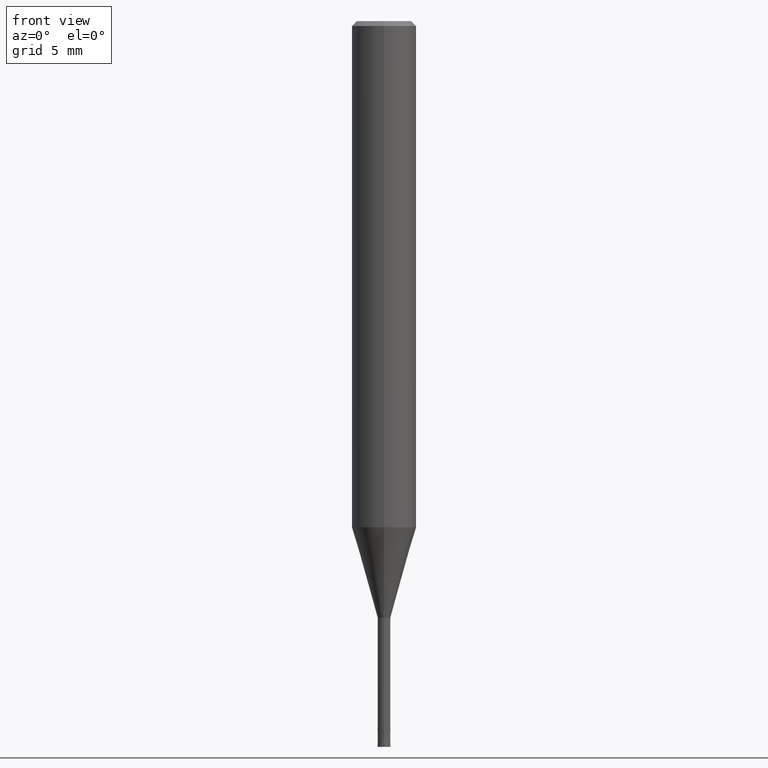
[diagram: clean part render]
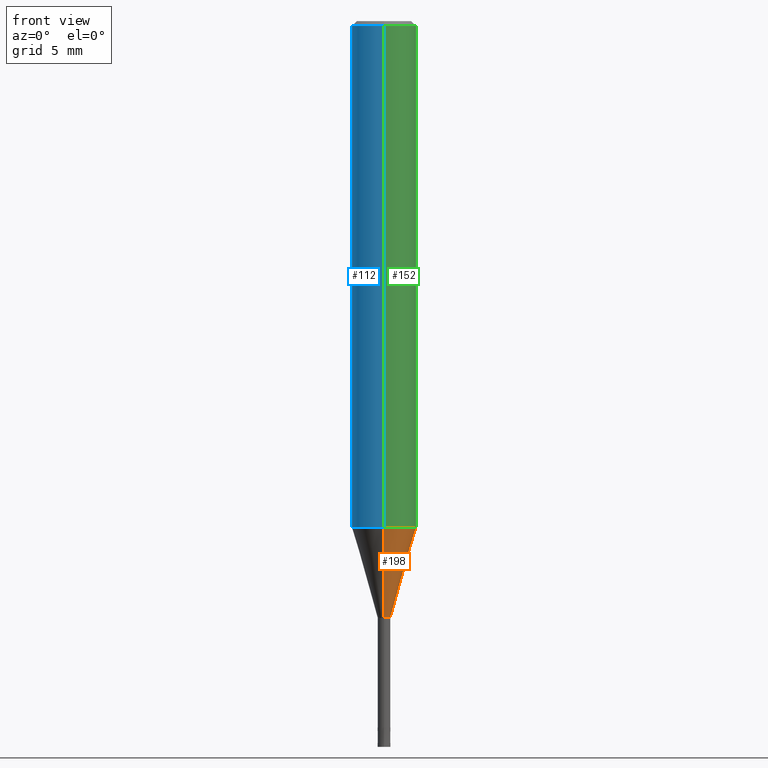
[diagram: same view with three faces highlighted in distinct colors, each labeled with its STEP entity id]
A machine part, front view with three faces highlighted in distinct colors.
Their STEP definitions:

[orange] entity #198 — the highlighted conical surface has half-angle 15.999 deg.
#98=VERTEX_POINT('',#236);
#104=VERTEX_POINT('',#242);
#134=EDGE_CURVE('',#140,#148,#276,.T.);
#140=VERTEX_POINT('',#282);
#148=VERTEX_POINT('',#292);
#150=EDGE_CURVE('',#104,#148,#294,.T.);
#160=EDGE_CURVE('',#104,#98,#306,.T.);
#184=EDGE_CURVE('',#98,#140,#335,.T.);
#198=ADVANCED_FACE('',(#350),#351,.T.);
#236=CARTESIAN_POINT('',(0.0,0.38995,-37.0));
#242=CARTESIAN_POINT('',(0.0,1.99995,-31.385));
#276=LINE('',#431,#432);
#282=CARTESIAN_POINT('',(4.77535247673036E-017,-0.38995,-37.0));
#292=CARTESIAN_POINT('',(2.44915147732706E-016,-1.99995,-31.385));
#294=CIRCLE('',#455,1.99995);
#306=LINE('',#470,#471);
#335=CIRCLE('',#505,0.38995);
#350=FACE_OUTER_BOUND('',#524,.T.);
#351=CONICAL_SURFACE('',#525,1.19495,0.279240281890545);
#431=CARTESIAN_POINT('',(1.46334336250005E-016,-1.19495,-34.1925));
#432=VECTOR('',#601,1.0);
#455=AXIS2_PLACEMENT_3D('',#625,#626,#627);
#470=CARTESIAN_POINT('',(-1.46334336250005E-016,1.19495,-34.1925));
#471=VECTOR('',#645,1.0);
#505=AXIS2_PLACEMENT_3D('',#688,#689,#690);
#524=EDGE_LOOP('',(#702,#703,#704,#705));
#525=AXIS2_PLACEMENT_3D('',#706,#707,#708);
#601=DIRECTION('',(3.37532662235176E-017,-0.275625437661361,0.961265113334497));
#625=CARTESIAN_POINT('',(0.0,0.0,-31.385));
#626=DIRECTION('',(0.0,0.0,-1.0));
#627=DIRECTION('',(0.0,1.0,0.0));
#645=DIRECTION('',(3.37532662235176E-017,-0.275625437661361,-0.961265113334497));
#688=CARTESIAN_POINT('',(0.0,0.0,-37.0));
#689=DIRECTION('',(0.0,0.0,-1.0));
#690=DIRECTION('',(0.0,1.0,0.0));
#702=ORIENTED_EDGE('',*,*,#160,.F.);
#703=ORIENTED_EDGE('',*,*,#150,.T.);
#704=ORIENTED_EDGE('',*,*,#134,.F.);
#705=ORIENTED_EDGE('',*,*,#184,.F.);
#706=CARTESIAN_POINT('',(0.0,0.0,-34.1925));
#707=DIRECTION('',(-0.0,-0.0,1.0));
#708=DIRECTION('',(0.0,1.0,0.0));

[blue] entity #112 — the highlighted cylindrical surface (edge-blend (fillet) strip) has radius 2 mm, axis along (-0, -0, 1).
#112=ADVANCED_FACE('',(#251),#252,.T.);
#118=EDGE_CURVE('',#206,#204,#259,.T.);
#122=EDGE_CURVE('',#204,#126,#263,.T.);
#126=VERTEX_POINT('',#267);
#136=EDGE_CURVE('',#126,#194,#278,.T.);
#142=EDGE_CURVE('',#206,#194,#284,.T.);
#194=VERTEX_POINT('',#346);
#204=VERTEX_POINT('',#357);
#206=VERTEX_POINT('',#359);
#251=FACE_OUTER_BOUND('',#398,.T.);
#252=CYLINDRICAL_SURFACE('',#399,2.0);
#259=LINE('',#408,#409);
#263=CIRCLE('',#415,2.0);
#267=CARTESIAN_POINT('',(0.0,2.0,-0.300000000000001));
#278=LINE('',#435,#436);
#284=CIRCLE('',#444,2.0);
#346=CARTESIAN_POINT('',(0.0,2.0,-31.385));
#357=CARTESIAN_POINT('',(2.44921270764475E-016,-2.0,-0.300000000000001));
#359=CARTESIAN_POINT('',(2.44921270764475E-016,-2.0,-31.385));
#398=EDGE_LOOP('',(#562,#563,#564,#565));
#399=AXIS2_PLACEMENT_3D('',#566,#567,#568);
#408=CARTESIAN_POINT('',(2.44921270764475E-016,-2.0,-15.8425));
#409=VECTOR('',#580,1.0);
#415=AXIS2_PLACEMENT_3D('',#584,#585,#586);
#435=CARTESIAN_POINT('',(-2.44921270764475E-016,2.0,-15.8425));
#436=VECTOR('',#602,1.0);
#444=AXIS2_PLACEMENT_3D('',#606,#607,#608);
#562=ORIENTED_EDGE('',*,*,#136,.T.);
#563=ORIENTED_EDGE('',*,*,#142,.F.);
#564=ORIENTED_EDGE('',*,*,#118,.T.);
#565=ORIENTED_EDGE('',*,*,#122,.T.);
#566=CARTESIAN_POINT('',(0.0,0.0,-15.8425));
#567=DIRECTION('',(-0.0,-0.0,1.0));
#568=DIRECTION('',(0.0,1.0,0.0));
#580=DIRECTION('',(-0.0,-0.0,1.0));
#584=CARTESIAN_POINT('',(0.0,0.0,-0.300000000000001));
#585=DIRECTION('',(0.0,0.0,-1.0));
#586=DIRECTION('',(0.0,1.0,0.0));
#602=DIRECTION('',(0.0,0.0,-1.0));
#606=CARTESIAN_POINT('',(0.0,0.0,-31.385));
#607=DIRECTION('',(0.0,0.0,-1.0));
#608=DIRECTION('',(0.0,1.0,0.0));

[green] entity #152 — the highlighted cylindrical surface (edge-blend (fillet) strip) has radius 2 mm, axis along (-0, -0, 1).
#118=EDGE_CURVE('',#206,#204,#259,.T.);
#126=VERTEX_POINT('',#267);
#136=EDGE_CURVE('',#126,#194,#278,.T.);
#138=EDGE_CURVE('',#194,#206,#280,.T.);
#152=ADVANCED_FACE('',(#296),#297,.T.);
#174=EDGE_CURVE('',#126,#204,#322,.T.);
#194=VERTEX_POINT('',#346);
#204=VERTEX_POINT('',#357);
#206=VERTEX_POINT('',#359);
#259=LINE('',#408,#409);
#267=CARTESIAN_POINT('',(0.0,2.0,-0.300000000000001));
#278=LINE('',#435,#436);
#280=CIRCLE('',#439,2.0);
#296=FACE_OUTER_BOUND('',#457,.T.);
#297=CYLINDRICAL_SURFACE('',#458,2.0);
#322=CIRCLE('',#489,2.0);
#346=CARTESIAN_POINT('',(0.0,2.0,-31.385));
#357=CARTESIAN_POINT('',(2.44921270764475E-016,-2.0,-0.300000000000001));
#359=CARTESIAN_POINT('',(2.44921270764475E-016,-2.0,-31.385));
#408=CARTESIAN_POINT('',(2.44921270764475E-016,-2.0,-15.8425));
#409=VECTOR('',#580,1.0);
#435=CARTESIAN_POINT('',(-2.44921270764475E-016,2.0,-15.8425));
#436=VECTOR('',#602,1.0);
#439=AXIS2_PLACEMENT_3D('',#603,#604,#605);
#457=EDGE_LOOP('',(#629,#630,#631,#632));
#458=AXIS2_PLACEMENT_3D('',#633,#634,#635);
#489=AXIS2_PLACEMENT_3D('',#665,#666,#667);
#580=DIRECTION('',(-0.0,-0.0,1.0));
#602=DIRECTION('',(0.0,0.0,-1.0));
#603=CARTESIAN_POINT('',(0.0,0.0,-31.385));
#604=DIRECTION('',(0.0,0.0,-1.0));
#605=DIRECTION('',(0.0,1.0,0.0));
#629=ORIENTED_EDGE('',*,*,#136,.F.);
#630=ORIENTED_EDGE('',*,*,#174,.T.);
#631=ORIENTED_EDGE('',*,*,#118,.F.);
#632=ORIENTED_EDGE('',*,*,#138,.F.);
#633=CARTESIAN_POINT('',(0.0,0.0,-15.8425));
#634=DIRECTION('',(-0.0,-0.0,1.0));
#635=DIRECTION('',(0.0,1.0,0.0));
#665=CARTESIAN_POINT('',(0.0,0.0,-0.300000000000001));
#666=DIRECTION('',(0.0,0.0,-1.0));
#667=DIRECTION('',(0.0,1.0,0.0));